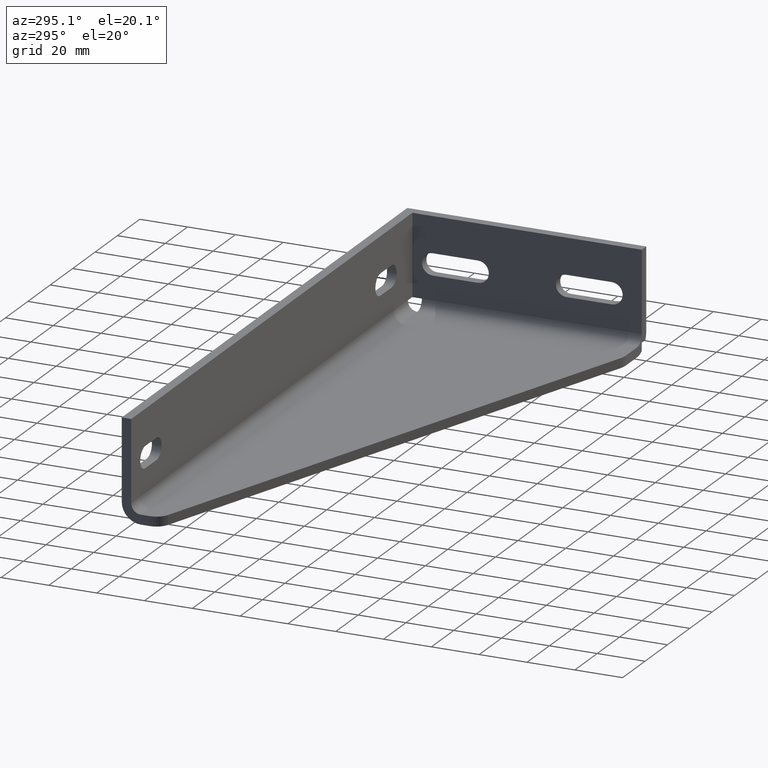
[diagram: clean part render]
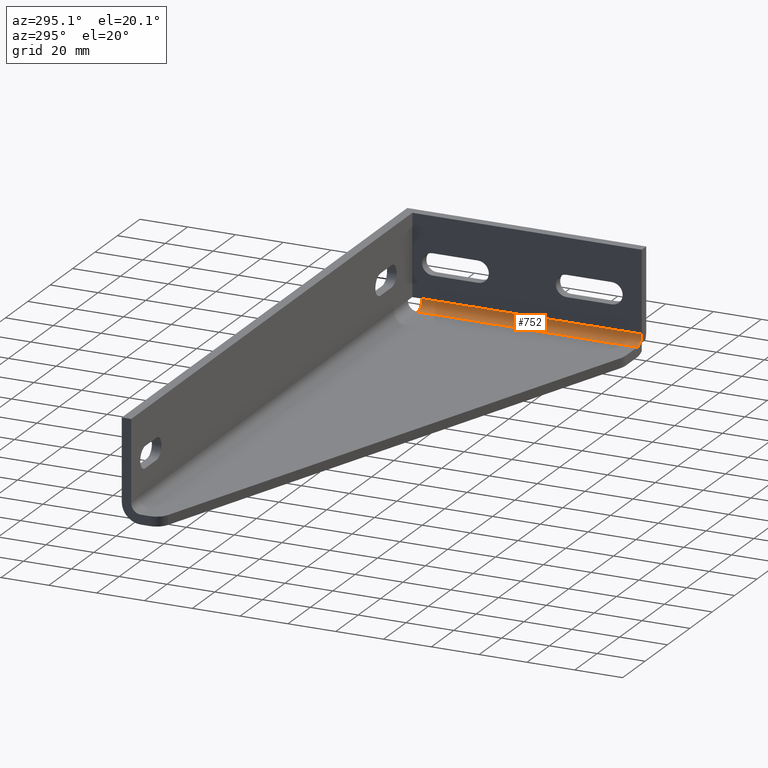
[diagram: same view with one face highlighted and labeled with its STEP entity id]
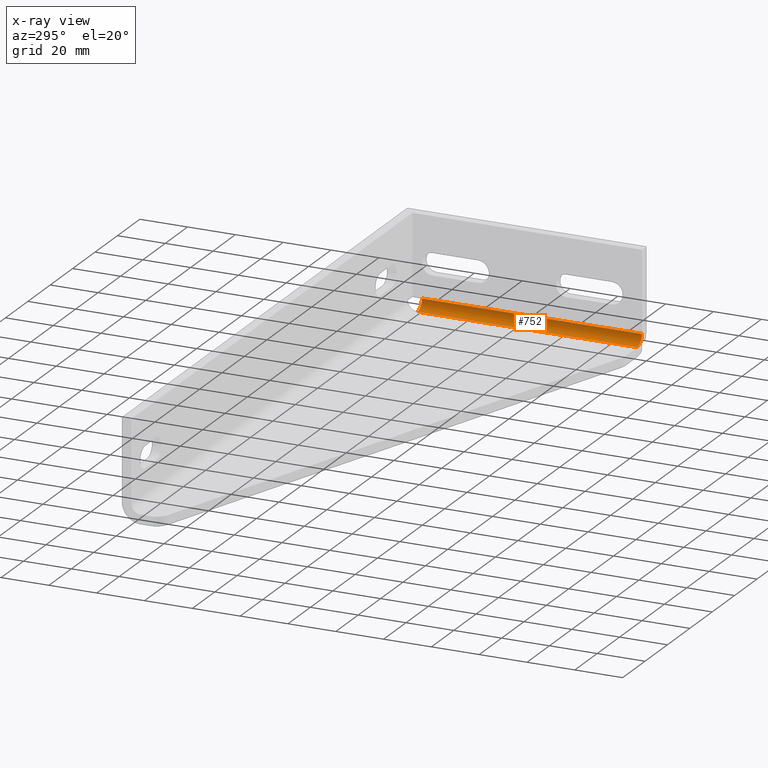
[diagram: x-ray of the same camera — body ghosted, the highlighted face saturated]
A machine part, auxiliary view. The second image highlights one B-rep face of the part: STEP entity #752.
The next image is the same camera in x-ray: the body ghosted, the highlighted face saturated — about 0% of this face is hidden behind the body in this view.
In plain terms, the highlighted cylindrical surface (edge-blend (fillet) strip) has radius 4 mm, axis along (-0, -1, 0).
Its self-contained STEP definition (entity closure, byte-faithful):
#34=CIRCLE('',#789,3.99999999999988);
#49=CIRCLE('',#819,4.00000000000013);
#66=CYLINDRICAL_SURFACE('',#821,3.99999999999997);
#97=FACE_OUTER_BOUND('',#140,.T.);
#140=EDGE_LOOP('',(#612,#613,#614,#615));
#178=LINE('',#1110,#254);
#218=LINE('',#1243,#294);
#254=VECTOR('',#881,92.);
#294=VECTOR('',#1009,92.);
#330=VERTEX_POINT('',#1107);
#331=VERTEX_POINT('',#1109);
#337=VERTEX_POINT('',#1144);
#367=VERTEX_POINT('',#1235);
#400=EDGE_CURVE('',#330,#331,#178,.T.);
#413=EDGE_CURVE('',#331,#337,#34,.T.);
#460=EDGE_CURVE('',#330,#367,#49,.T.);
#463=EDGE_CURVE('',#337,#367,#218,.T.);
#612=ORIENTED_EDGE('',*,*,#400,.F.);
#613=ORIENTED_EDGE('',*,*,#460,.T.);
#614=ORIENTED_EDGE('',*,*,#463,.F.);
#615=ORIENTED_EDGE('',*,*,#413,.F.);
#752=ADVANCED_FACE('',(#97),#66,.F.);
#789=AXIS2_PLACEMENT_3D('',#1145,#909,#910);
#819=AXIS2_PLACEMENT_3D('',#1237,#1001,#1002);
#821=AXIS2_PLACEMENT_3D('',#1242,#1007,#1008);
#881=DIRECTION('',(-1.70076183204162E-15,-1.,-2.30768365885029E-30));
#909=DIRECTION('center_axis',(3.5527136788005E-16,1.,0.));
#910=DIRECTION('ref_axis',(1.,-3.5527136788005E-16,1.66533453693779E-15));
#1001=DIRECTION('center_axis',(3.5527136788005E-16,1.,0.));
#1002=DIRECTION('ref_axis',(1.,-3.5527136788005E-16,-5.27355936696932E-15));
#1007=DIRECTION('center_axis',(-3.5527136788005E-16,-1.,0.));
#1008=DIRECTION('ref_axis',(0.,0.,-1.));
#1009=DIRECTION('',(0.,1.,0.));
#1107=CARTESIAN_POINT('',(-3.99999999999999,-7.99999999999999,-14.5000000000001));
#1109=CARTESIAN_POINT('',(-3.99999999999999,-100.,-14.5));
#1110=CARTESIAN_POINT('',(-3.99999999999999,-54.,-14.5000000000001));
#1144=CARTESIAN_POINT('',(-7.99999999999997,-100.,-18.5));
#1145=CARTESIAN_POINT('Origin',(-7.99999999999997,-100.,-14.5));
#1235=CARTESIAN_POINT('',(-7.99999999999997,-7.99999999999999,-18.5));
#1237=CARTESIAN_POINT('Origin',(-7.99999999999997,-7.99999999999999,-14.5));
#1242=CARTESIAN_POINT('Origin',(-7.99999999999997,-54.,-14.5));
#1243=CARTESIAN_POINT('',(-7.99999999999997,-20.8622137040597,-18.5));